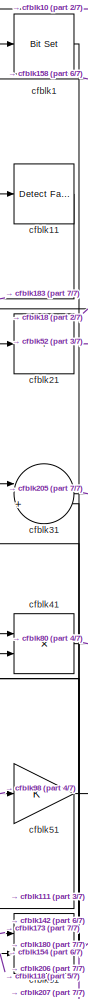
[diagram: root canvas - part 1/7, top left region]
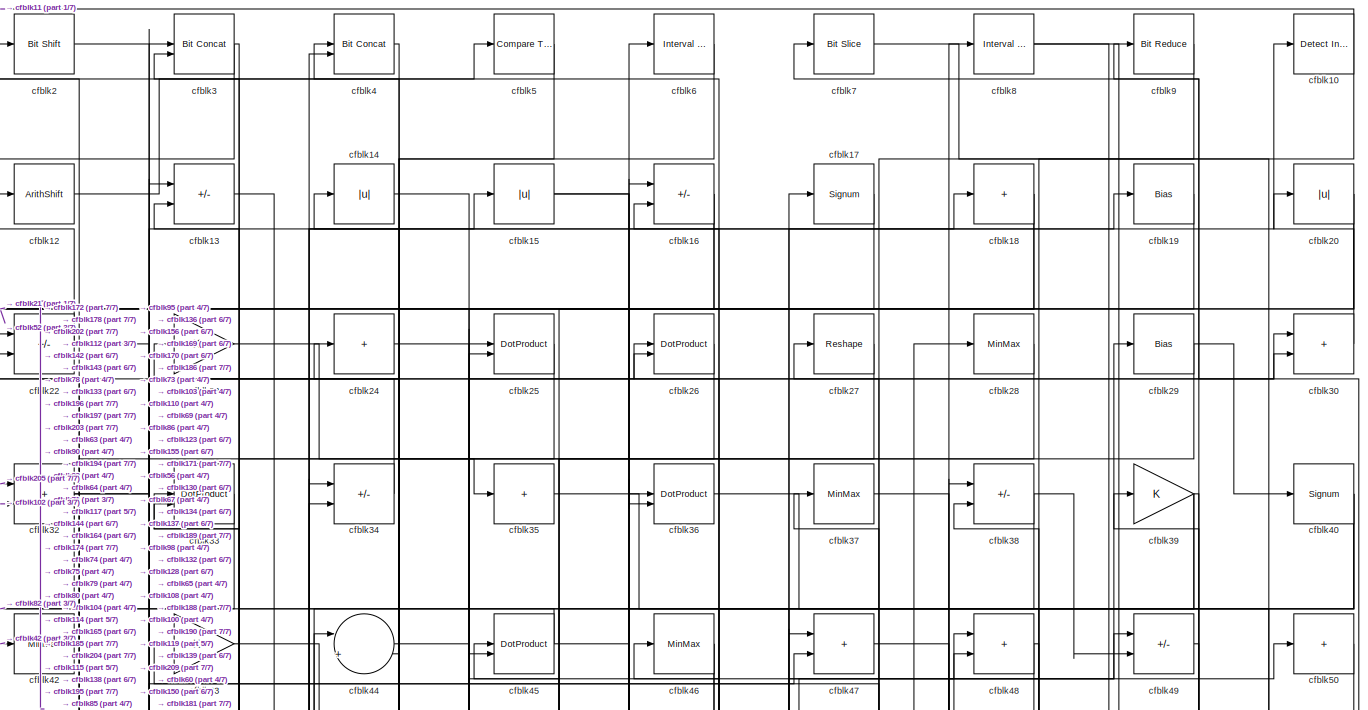
[diagram: root canvas - part 2/7, full width, top band]
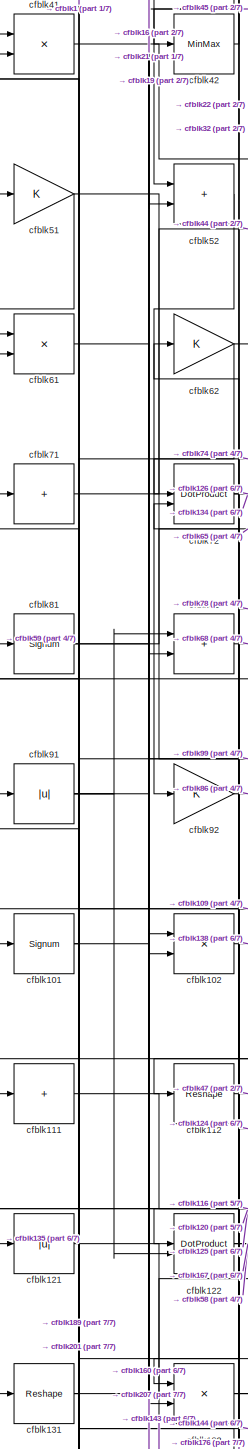
[diagram: root canvas - part 3/7, middle left region]
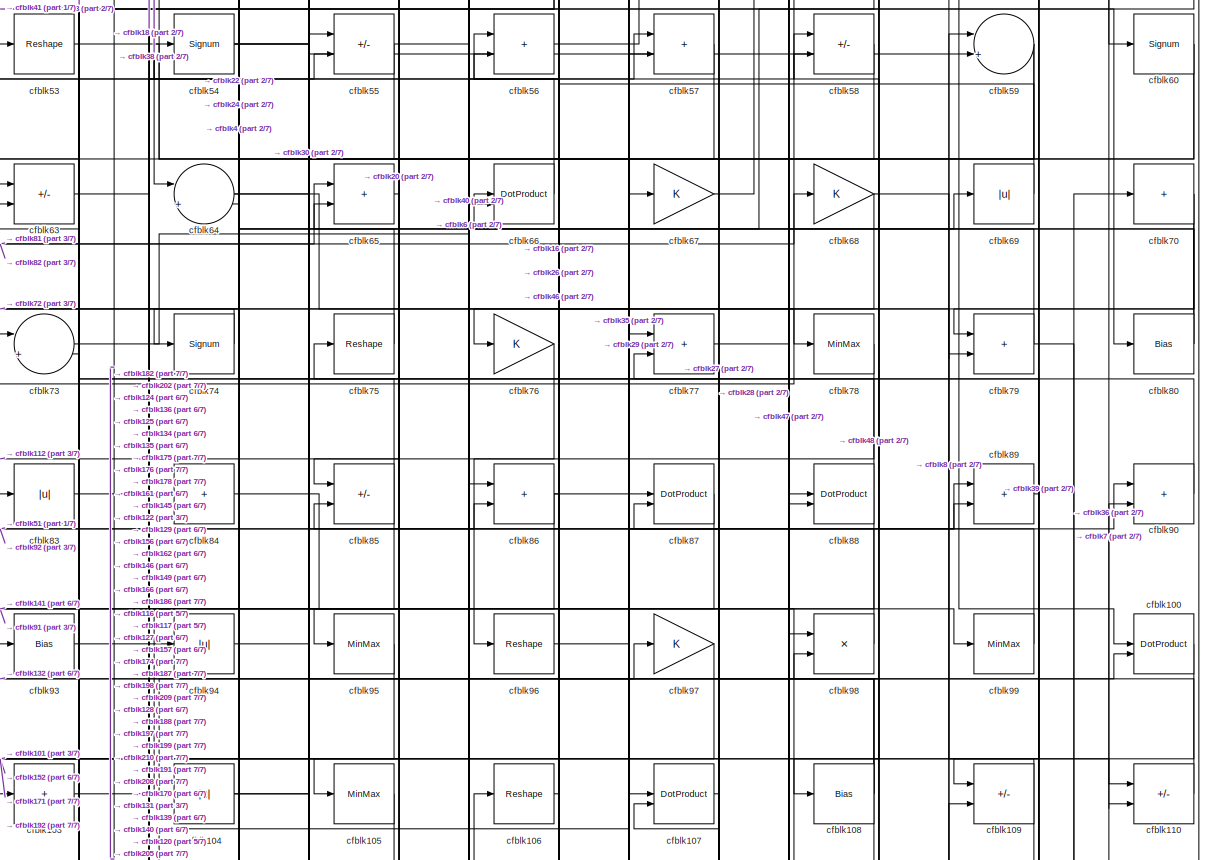
[diagram: root canvas - part 4/7, full width, middle band]
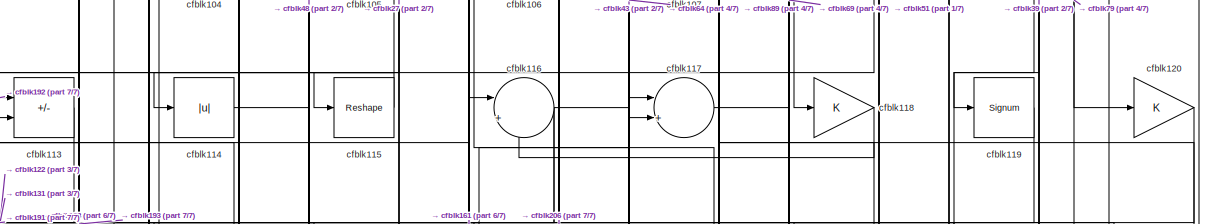
[diagram: root canvas - part 5/7, full width, middle band]
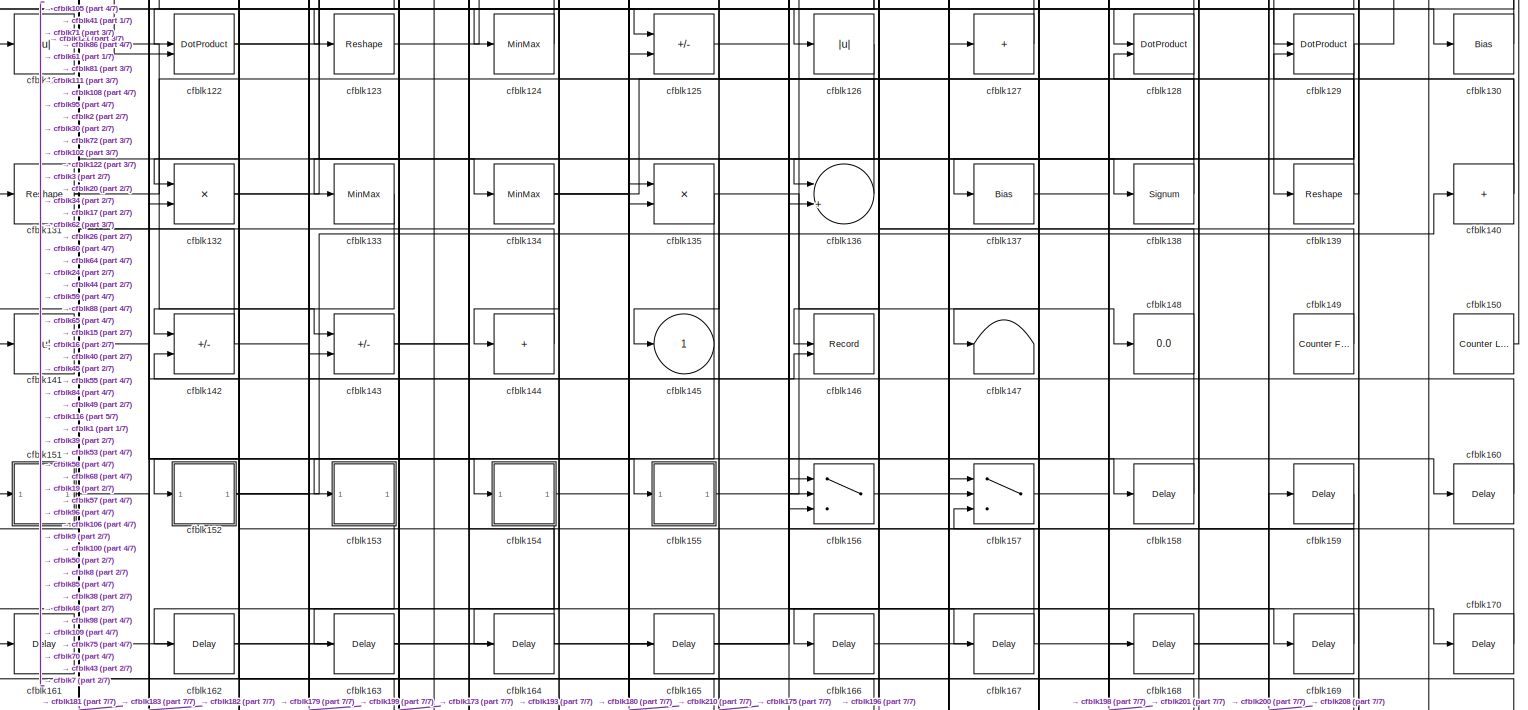
[diagram: root canvas - part 6/7, full width, bottom band]
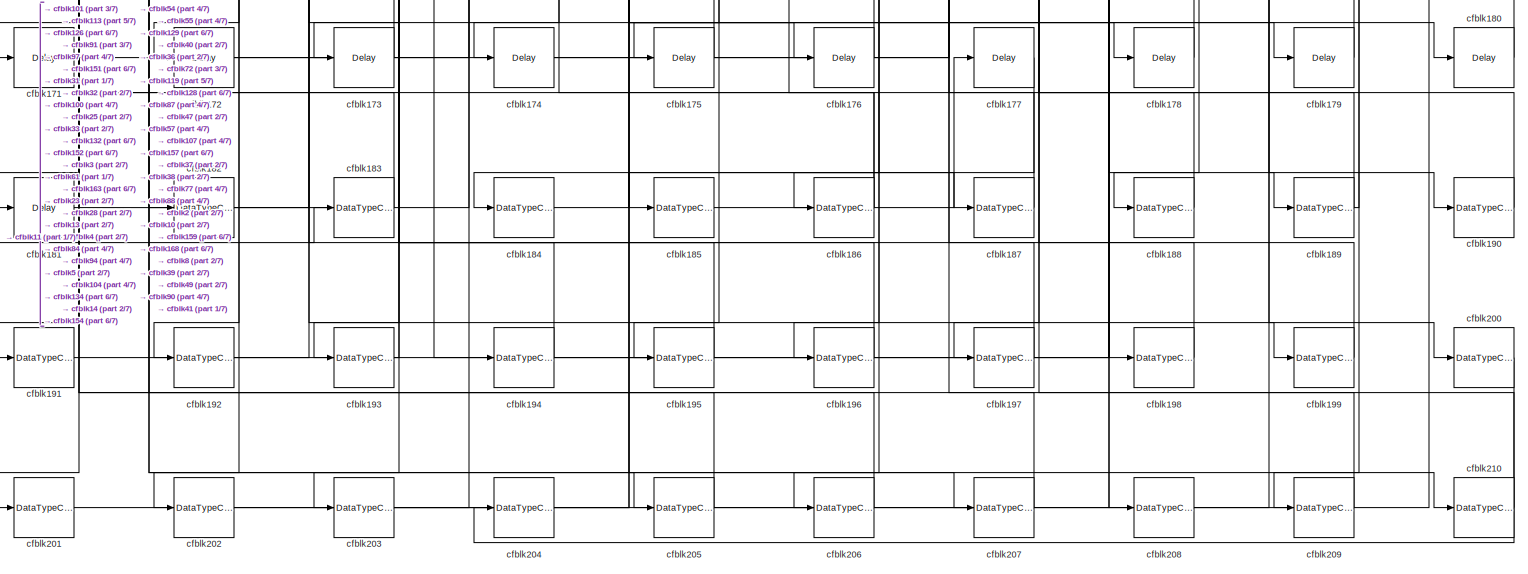
[diagram: root canvas - part 7/7, full width, bottom band]
MODEL slx_5a0d60362ead
KIND model
CONFIG AbsTol = auto
CONFIG EnableMultiTasking = off
CONFIG FixedStep = auto
CONFIG MaxStep = auto
CONFIG MinStep = auto
CONFIG RelTol = 1e-3
CONFIG SampleTimeConstraint = Unconstrained
CONFIG SolverName = VariableStepAuto
CONFIG StartTime = 0.0
CONFIG StopTime = 10.0
BLOCK [Reference] cfblk1  REF=simulink/Logic and Bit
Operations/Bit Set
  LibrarySourceBlock = hdlsllib/Logic and Bit\nOperations/Bit Set
  SourceBlock = simulink/Logic and Bit\nOperations/Bit Set
  SourceType = Bit Set
BLOCK [Reference] cfblk10  REF=simulink/Logic and Bit
Operations/Detect
Increase
  LibrarySourceBlock = hdlsllib/Logic and Bit\nOperations/Detect\nIncrease
  SourceBlock = simulink/Logic and Bit\nOperations/Detect\nIncrease
  SourceType = Detect Increase
BLOCK [DotProduct] cfblk100
  OutDataTypeStr = Inherit: Inherit via internal rule
BLOCK [Signum] cfblk101
BLOCK [Product] cfblk102
  Inputs = */
  RndMeth = Zero
  SaturateOnIntegerOverflow = on
BLOCK [Sum] cfblk103
  IconShape = rectangular
  Inputs = +
BLOCK [Abs] cfblk104
  SaturateOnIntegerOverflow = off
BLOCK [MinMax] cfblk105
BLOCK [Reshape] cfblk106
BLOCK [DotProduct] cfblk107
  OutDataTypeStr = Inherit: Inherit via internal rule
BLOCK [Bias] cfblk108
  Bias = 0.0
  SaturateOnIntegerOverflow = off
BLOCK [Sum] cfblk109
  IconShape = rectangular
  Inputs = +-
BLOCK [Reference] cfblk11  REF=hdlsllib/Logic and Bit
Operations/Detect Fall
Nonpositive
  SourceBlock = hdlsllib/Logic and Bit\nOperations/Detect Fall\nNonpositive
  SourceType = Detect Fall Nonpositive
BLOCK [Sum] cfblk110
  IconShape = rectangular
  Inputs = +-
BLOCK [Sum] cfblk111
  IconShape = rectangular
  Inputs = +
BLOCK [Reshape] cfblk112
BLOCK [Sum] cfblk113
  IconShape = rectangular
  Inputs = +-
BLOCK [Abs] cfblk114
  SaturateOnIntegerOverflow = off
BLOCK [Reshape] cfblk115
BLOCK [Sum] cfblk116
  Inputs = |++
BLOCK [Sum] cfblk117
  Inputs = |++
BLOCK [Gain] cfblk118
BLOCK [Signum] cfblk119
BLOCK [ArithShift] cfblk12
  BitShiftNumber = 8
  InputPortMap = u0
BLOCK [Gain] cfblk120
BLOCK [Abs] cfblk121
  SaturateOnIntegerOverflow = off
BLOCK [DotProduct] cfblk122
  OutDataTypeStr = Inherit: Inherit via internal rule
BLOCK [Reshape] cfblk123
BLOCK [MinMax] cfblk124
BLOCK [Sum] cfblk125
  IconShape = rectangular
  Inputs = +-
BLOCK [Abs] cfblk126
  SaturateOnIntegerOverflow = off
BLOCK [Sum] cfblk127
  IconShape = rectangular
  Inputs = +
BLOCK [DotProduct] cfblk128
  OutDataTypeStr = Inherit: Inherit via internal rule
BLOCK [DotProduct] cfblk129
  OutDataTypeStr = Inherit: Inherit via internal rule
BLOCK [Sum] cfblk13
  IconShape = rectangular
  Inputs = +-
BLOCK [Bias] cfblk130
  Bias = 0.0
  SaturateOnIntegerOverflow = off
BLOCK [Reshape] cfblk131
BLOCK [Product] cfblk132
  Inputs = */
  RndMeth = Zero
  SaturateOnIntegerOverflow = on
BLOCK [MinMax] cfblk133
BLOCK [MinMax] cfblk134
BLOCK [Product] cfblk135
  Inputs = */
  RndMeth = Zero
  SaturateOnIntegerOverflow = on
BLOCK [Sum] cfblk136
  Inputs = |++
BLOCK [Bias] cfblk137
  Bias = 0.0
  SaturateOnIntegerOverflow = off
BLOCK [Signum] cfblk138
BLOCK [Reshape] cfblk139
BLOCK [Abs] cfblk14
  SaturateOnIntegerOverflow = off
BLOCK [Sum] cfblk140
  IconShape = rectangular
  Inputs = +
BLOCK [Abs] cfblk141
  SaturateOnIntegerOverflow = off
BLOCK [Sum] cfblk142
  IconShape = rectangular
  Inputs = +-
BLOCK [Sum] cfblk143
  IconShape = rectangular
  Inputs = +-
BLOCK [Sum] cfblk144
  IconShape = rectangular
  Inputs = +
BLOCK [Outport] cfblk145
  VectorParamsAs1DForOutWhenUnconnected = off
BLOCK [Record] cfblk146
  CompatibilityTag = XY
  FileSettingsInternal = {"entries":[{"content":{"excelSettings":{"content":{},"type":"Streamout.ExcelSettings"}},"type":"Streamout.FileSettingStorage","uuid":""}],"packageUris":["http:\/\/schema.mathworks.com\/mf0\/streamout_blocks\/R2020a"],"version":"1.0"}
  Layout = [1 1]
  SignalsInternal = {"entries":[{"content":{"signals":[{"content":{"blockPath":[],"dimensions":[1],"domain":"","lineColor":"#a2142f","plots":[1],"port":1,"signalID":1371,"signalName":"XY Graph:1"},"type":"RecordBlkView.Signal","uuid":""},{"content":{"blockPath":[],"dimensions":[1],"domain":"","lineColor":"#139fff","plots":[1],"port":2,"signalID":1374,"signalName":"XY Graph:2"},"type":"RecordBlkView.Signal","uuid":""}...<+146ch>
  VisualizationBindings = {"xyplotplugin":{"info":[{"series":[{"bindingParametersList":[{"parameter":"X-Axis","signalID":1371,"signalName":"XY Graph:1"},{"parameter":"Y-Axis","signalID":1374,"signalName":"XY Graph:2"}],"seriesID":50908}],"subplotID":1}]}}
  st = -1
BLOCK [Terminator] cfblk147
BLOCK [Display] cfblk148
  Decimation = 1
BLOCK [Reference] cfblk149  REF=hdlsllib/Sources/Counter
Free-Running
  SourceBlock = hdlsllib/Sources/Counter\nFree-Running
  SourceType = Counter Free-Running
BLOCK [Abs] cfblk15
  SaturateOnIntegerOverflow = off
BLOCK [Reference] cfblk150  REF=hdlsllib/Sources/Counter
Limited
  SourceBlock = hdlsllib/Sources/Counter\nLimited
  SourceType = Counter Limited
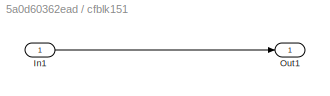
BLOCK [SubSystem] cfblk151
  LibrarySourceBlock = hdlsllib/Ports &\nSubsystems/Subsystem
BLOCK [Inport] cfblk151/In1
BLOCK [Outport] cfblk151/Out1
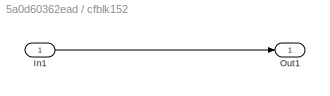
BLOCK [SubSystem] cfblk152
  LibrarySourceBlock = hdlsllib/Ports &\nSubsystems/Subsystem
BLOCK [Inport] cfblk152/In1
BLOCK [Outport] cfblk152/Out1
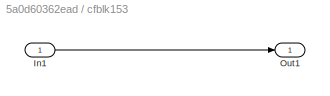
BLOCK [SubSystem] cfblk153
  LibrarySourceBlock = hdlsllib/Ports &\nSubsystems/Subsystem
BLOCK [Inport] cfblk153/In1
BLOCK [Outport] cfblk153/Out1
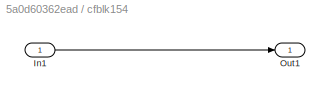
BLOCK [SubSystem] cfblk154
  LibrarySourceBlock = hdlsllib/Ports &\nSubsystems/Subsystem
BLOCK [Inport] cfblk154/In1
BLOCK [Outport] cfblk154/Out1
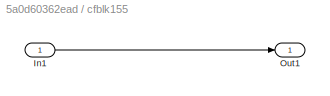
BLOCK [SubSystem] cfblk155
  LibrarySourceBlock = hdlsllib/Ports &\nSubsystems/Subsystem
BLOCK [Inport] cfblk155/In1
BLOCK [Outport] cfblk155/Out1
BLOCK [Switch] cfblk156
  InputSameDT = off
  SaturateOnIntegerOverflow = off
BLOCK [Switch] cfblk157
  InputSameDT = off
  SaturateOnIntegerOverflow = off
BLOCK [Delay] cfblk158
  InputPortMap = u0
  SampleTime = 1
BLOCK [Delay] cfblk159
  InputPortMap = u0
  SampleTime = 1
BLOCK [Sum] cfblk16
  IconShape = rectangular
  Inputs = +-
BLOCK [Delay] cfblk160
  InputPortMap = u0
  SampleTime = 1
BLOCK [Delay] cfblk161
  InputPortMap = u0
  SampleTime = 1
BLOCK [Delay] cfblk162
  InputPortMap = u0
  SampleTime = 1
BLOCK [Delay] cfblk163
  InputPortMap = u0
  SampleTime = 1
BLOCK [Delay] cfblk164
  InputPortMap = u0
  SampleTime = 1
BLOCK [Delay] cfblk165
  InputPortMap = u0
  SampleTime = 1
BLOCK [Delay] cfblk166
  InputPortMap = u0
  SampleTime = 1
BLOCK [Delay] cfblk167
  InputPortMap = u0
  SampleTime = 1
BLOCK [Delay] cfblk168
  InputPortMap = u0
  SampleTime = 1
BLOCK [Delay] cfblk169
  InputPortMap = u0
  SampleTime = 1
BLOCK [Signum] cfblk17
BLOCK [Delay] cfblk170
  InputPortMap = u0
  SampleTime = 1
BLOCK [Delay] cfblk171
  InputPortMap = u0
  SampleTime = 1
BLOCK [Delay] cfblk172
  InputPortMap = u0
  SampleTime = 1
BLOCK [Delay] cfblk173
  InputPortMap = u0
  SampleTime = 1
BLOCK [Delay] cfblk174
  InputPortMap = u0
  SampleTime = 1
BLOCK [Delay] cfblk175
  InputPortMap = u0
  SampleTime = 1
BLOCK [Delay] cfblk176
  InputPortMap = u0
  SampleTime = 1
BLOCK [Delay] cfblk177
  InputPortMap = u0
  SampleTime = 1
BLOCK [Delay] cfblk178
  InputPortMap = u0
  SampleTime = 1
BLOCK [Delay] cfblk179
  InputPortMap = u0
  SampleTime = 1
BLOCK [Sum] cfblk18
  IconShape = rectangular
  Inputs = +
BLOCK [Delay] cfblk180
  InputPortMap = u0
  SampleTime = 1
BLOCK [Delay] cfblk181
  InputPortMap = u0
  SampleTime = 1
BLOCK [DataTypeConversion] cfblk182
  OutDataTypeStr = uint8
  RndMeth = Floor
  SaturateOnIntegerOverflow = off
BLOCK [DataTypeConversion] cfblk183
  OutDataTypeStr = uint8
  RndMeth = Floor
  SaturateOnIntegerOverflow = off
BLOCK [DataTypeConversion] cfblk184
  OutDataTypeStr = uint8
  RndMeth = Floor
  SaturateOnIntegerOverflow = off
BLOCK [DataTypeConversion] cfblk185
  OutDataTypeStr = uint8
  RndMeth = Floor
  SaturateOnIntegerOverflow = off
BLOCK [DataTypeConversion] cfblk186
  RndMeth = Floor
  SaturateOnIntegerOverflow = off
BLOCK [DataTypeConversion] cfblk187
  OutDataTypeStr = uint8
  RndMeth = Floor
  SaturateOnIntegerOverflow = off
BLOCK [DataTypeConversion] cfblk188
  OutDataTypeStr = uint8
  RndMeth = Floor
  SaturateOnIntegerOverflow = off
BLOCK [DataTypeConversion] cfblk189
  RndMeth = Floor
  SaturateOnIntegerOverflow = off
BLOCK [Bias] cfblk19
  Bias = 0.0
  SaturateOnIntegerOverflow = off
BLOCK [DataTypeConversion] cfblk190
  OutDataTypeStr = uint8
  RndMeth = Floor
  SaturateOnIntegerOverflow = off
BLOCK [DataTypeConversion] cfblk191
  OutDataTypeStr = uint8
  RndMeth = Floor
  SaturateOnIntegerOverflow = off
BLOCK [DataTypeConversion] cfblk192
  OutDataTypeStr = uint8
  RndMeth = Floor
  SaturateOnIntegerOverflow = off
BLOCK [DataTypeConversion] cfblk193
  OutDataTypeStr = uint8
  RndMeth = Floor
  SaturateOnIntegerOverflow = off
BLOCK [DataTypeConversion] cfblk194
  RndMeth = Floor
  SaturateOnIntegerOverflow = off
BLOCK [DataTypeConversion] cfblk195
  OutDataTypeStr = uint8
  RndMeth = Floor
  SaturateOnIntegerOverflow = off
BLOCK [DataTypeConversion] cfblk196
  OutDataTypeStr = uint8
  RndMeth = Floor
  SaturateOnIntegerOverflow = off
BLOCK [DataTypeConversion] cfblk197
  OutDataTypeStr = uint8
  RndMeth = Floor
  SaturateOnIntegerOverflow = off
BLOCK [DataTypeConversion] cfblk198
  OutDataTypeStr = uint8
  RndMeth = Floor
  SaturateOnIntegerOverflow = off
BLOCK [DataTypeConversion] cfblk199
  OutDataTypeStr = uint8
  RndMeth = Floor
  SaturateOnIntegerOverflow = off
BLOCK [Reference] cfblk2  REF=hdlsllib/Logic and Bit
Operations/Bit Shift
  SourceBlock = hdlsllib/Logic and Bit\nOperations/Bit Shift
  SourceType = Bit Shift
BLOCK [Abs] cfblk20
  SaturateOnIntegerOverflow = off
BLOCK [DataTypeConversion] cfblk200
  OutDataTypeStr = uint8
  RndMeth = Floor
  SaturateOnIntegerOverflow = off
BLOCK [DataTypeConversion] cfblk201
  OutDataTypeStr = uint8
  RndMeth = Floor
  SaturateOnIntegerOverflow = off
BLOCK [DataTypeConversion] cfblk202
  OutDataTypeStr = uint8
  RndMeth = Floor
  SaturateOnIntegerOverflow = off
BLOCK [DataTypeConversion] cfblk203
  OutDataTypeStr = uint8
  RndMeth = Floor
  SaturateOnIntegerOverflow = off
BLOCK [DataTypeConversion] cfblk204
  OutDataTypeStr = uint8
  RndMeth = Floor
  SaturateOnIntegerOverflow = off
BLOCK [DataTypeConversion] cfblk205
  RndMeth = Floor
  SaturateOnIntegerOverflow = off
BLOCK [DataTypeConversion] cfblk206
  OutDataTypeStr = uint8
  RndMeth = Floor
  SaturateOnIntegerOverflow = off
BLOCK [DataTypeConversion] cfblk207
  OutDataTypeStr = uint8
  RndMeth = Floor
  SaturateOnIntegerOverflow = off
BLOCK [DataTypeConversion] cfblk208
  OutDataTypeStr = uint8
  RndMeth = Floor
  SaturateOnIntegerOverflow = off
BLOCK [DataTypeConversion] cfblk209
  OutDataTypeStr = uint8
  RndMeth = Floor
  SaturateOnIntegerOverflow = off
BLOCK [Sum] cfblk21
  IconShape = rectangular
  Inputs = +
BLOCK [DataTypeConversion] cfblk210
  OutDataTypeStr = uint8
  RndMeth = Floor
  SaturateOnIntegerOverflow = off
BLOCK [Sum] cfblk22
  IconShape = rectangular
  Inputs = +-
BLOCK [Gain] cfblk23
BLOCK [Sum] cfblk24
  IconShape = rectangular
  Inputs = +
BLOCK [DotProduct] cfblk25
  OutDataTypeStr = Inherit: Inherit via internal rule
BLOCK [DotProduct] cfblk26
  OutDataTypeStr = Inherit: Inherit via internal rule
BLOCK [Reshape] cfblk27
BLOCK [MinMax] cfblk28
BLOCK [Bias] cfblk29
  Bias = 0.0
  SaturateOnIntegerOverflow = off
BLOCK [Reference] cfblk3  REF=hdlsllib/Logic and Bit
Operations/Bit Concat
  SourceBlock = hdlsllib/Logic and Bit\nOperations/Bit Concat
  SourceType = Bit Concat
BLOCK [Sum] cfblk30
  IconShape = rectangular
BLOCK [Sum] cfblk31
  Inputs = |++
BLOCK [Sum] cfblk32
  IconShape = rectangular
BLOCK [DotProduct] cfblk33
  OutDataTypeStr = Inherit: Inherit via internal rule
BLOCK [Sum] cfblk34
  IconShape = rectangular
  Inputs = +-
BLOCK [Sum] cfblk35
  IconShape = rectangular
  Inputs = +
BLOCK [DotProduct] cfblk36
  OutDataTypeStr = Inherit: Inherit via internal rule
BLOCK [MinMax] cfblk37
BLOCK [Sum] cfblk38
  IconShape = rectangular
  Inputs = +-
BLOCK [Gain] cfblk39
BLOCK [Reference] cfblk4  REF=hdlsllib/Logic and Bit
Operations/Bit Concat
  SourceBlock = hdlsllib/Logic and Bit\nOperations/Bit Concat
  SourceType = Bit Concat
BLOCK [Signum] cfblk40
BLOCK [Product] cfblk41
  Inputs = */
  RndMeth = Zero
  SaturateOnIntegerOverflow = on
BLOCK [MinMax] cfblk42
BLOCK [Gain] cfblk43
BLOCK [Sum] cfblk44
  Inputs = |++
BLOCK [DotProduct] cfblk45
  OutDataTypeStr = Inherit: Inherit via internal rule
BLOCK [MinMax] cfblk46
BLOCK [Sum] cfblk47
  IconShape = rectangular
BLOCK [Sum] cfblk48
  IconShape = rectangular
BLOCK [Sum] cfblk49
  IconShape = rectangular
  Inputs = +-
BLOCK [Reference] cfblk5  REF=hdlsllib/Logic and Bit
Operations/Compare
To Zero
  SourceBlock = hdlsllib/Logic and Bit\nOperations/Compare\nTo Zero
  SourceType = Compare To Zero
BLOCK [Sum] cfblk50
  IconShape = rectangular
  Inputs = +
BLOCK [Gain] cfblk51
BLOCK [Sum] cfblk52
  IconShape = rectangular
BLOCK [Reshape] cfblk53
BLOCK [Signum] cfblk54
BLOCK [Sum] cfblk55
  IconShape = rectangular
  Inputs = +-
BLOCK [Sum] cfblk56
  IconShape = rectangular
BLOCK [Sum] cfblk57
  IconShape = rectangular
BLOCK [Sum] cfblk58
  IconShape = rectangular
  Inputs = +-
BLOCK [Sum] cfblk59
  Inputs = |++
BLOCK [Reference] cfblk6  REF=hdlsllib/Logic and Bit
Operations/Interval Test
  SourceBlock = hdlsllib/Logic and Bit\nOperations/Interval Test
  SourceType = Interval Test
BLOCK [Signum] cfblk60
BLOCK [Product] cfblk61
  Inputs = */
  RndMeth = Zero
  SaturateOnIntegerOverflow = on
BLOCK [Gain] cfblk62
BLOCK [Sum] cfblk63
  IconShape = rectangular
  Inputs = +-
BLOCK [Sum] cfblk64
  Inputs = |++
BLOCK [Sum] cfblk65
  IconShape = rectangular
BLOCK [DotProduct] cfblk66
  OutDataTypeStr = Inherit: Inherit via internal rule
BLOCK [Gain] cfblk67
BLOCK [Gain] cfblk68
BLOCK [Abs] cfblk69
  SaturateOnIntegerOverflow = off
BLOCK [Reference] cfblk7  REF=hdlsllib/Logic and Bit
Operations/Bit Slice
  SourceBlock = hdlsllib/Logic and Bit\nOperations/Bit Slice
  SourceType = Bit Slice
BLOCK [Sum] cfblk70
  IconShape = rectangular
  Inputs = +
BLOCK [Sum] cfblk71
  IconShape = rectangular
  Inputs = +
BLOCK [DotProduct] cfblk72
  OutDataTypeStr = Inherit: Inherit via internal rule
BLOCK [Sum] cfblk73
  Inputs = |++
BLOCK [Signum] cfblk74
BLOCK [Reshape] cfblk75
BLOCK [Gain] cfblk76
BLOCK [Sum] cfblk77
  IconShape = rectangular
BLOCK [MinMax] cfblk78
BLOCK [Sum] cfblk79
  IconShape = rectangular
BLOCK [Reference] cfblk8  REF=hdlsllib/Logic and Bit
Operations/Interval Test
  SourceBlock = hdlsllib/Logic and Bit\nOperations/Interval Test
  SourceType = Interval Test
BLOCK [Bias] cfblk80
  Bias = 0.0
  SaturateOnIntegerOverflow = off
BLOCK [Signum] cfblk81
BLOCK [Sum] cfblk82
  IconShape = rectangular
BLOCK [Abs] cfblk83
  SaturateOnIntegerOverflow = off
BLOCK [Sum] cfblk84
  IconShape = rectangular
  Inputs = +
BLOCK [Sum] cfblk85
  IconShape = rectangular
  Inputs = +-
BLOCK [Sum] cfblk86
  IconShape = rectangular
BLOCK [DotProduct] cfblk87
  OutDataTypeStr = Inherit: Inherit via internal rule
BLOCK [DotProduct] cfblk88
  OutDataTypeStr = Inherit: Inherit via internal rule
BLOCK [Sum] cfblk89
  IconShape = rectangular
BLOCK [Reference] cfblk9  REF=hdlsllib/Logic and Bit
Operations/Bit Reduce
  SourceBlock = hdlsllib/Logic and Bit\nOperations/Bit Reduce
  SourceType = Bit Reduce
BLOCK [Sum] cfblk90
  IconShape = rectangular
BLOCK [Abs] cfblk91
  SaturateOnIntegerOverflow = off
BLOCK [Gain] cfblk92
BLOCK [Bias] cfblk93
  Bias = 0.0
  SaturateOnIntegerOverflow = off
BLOCK [Abs] cfblk94
  SaturateOnIntegerOverflow = off
BLOCK [MinMax] cfblk95
BLOCK [Reshape] cfblk96
BLOCK [Gain] cfblk97
BLOCK [Product] cfblk98
  Inputs = */
  RndMeth = Zero
  SaturateOnIntegerOverflow = on
BLOCK [MinMax] cfblk99
LINE cfblk100:1 -> cfblk192:1
NET cfblk101:1 -> cfblk201:1, cfblk207:1
LINE cfblk102:1 -> cfblk138:1
LINE cfblk103:1 -> cfblk97:1
NET cfblk104:1 -> cfblk176:1, cfblk30:2
LINE cfblk105:1 -> cfblk161:1
LINE cfblk106:1 -> cfblk56:2
LINE cfblk107:1 -> cfblk197:1
NET cfblk108:1 -> cfblk132:1, cfblk27:1, cfblk83:1, cfblk93:1
NET cfblk109:1 -> cfblk101:1, cfblk139:1
NET cfblk10:1 -> cfblk11:1, cfblk188:1
LINE cfblk110:1 -> cfblk46:1
LINE cfblk111:1 -> cfblk125:1
LINE cfblk112:1 -> cfblk47:2
LINE cfblk113:1 -> cfblk191:1
LINE cfblk114:1 -> cfblk48:2
LINE cfblk115:1 -> cfblk114:1
NET cfblk116:1 -> cfblk131:1, cfblk163:1, cfblk89:1
LINE cfblk117:1 -> cfblk69:1
LINE cfblk118:1 -> cfblk116:2
LINE cfblk119:1 -> cfblk206:1
LINE cfblk11:1 -> cfblk183:1
LINE cfblk120:1 -> cfblk122:1
LINE cfblk121:1 -> cfblk143:1
NET cfblk122:1 -> cfblk167:1, cfblk58:2
LINE cfblk123:1 -> cfblk17:1
LINE cfblk124:1 -> cfblk62:1
LINE cfblk125:1 -> cfblk158:1
LINE cfblk126:1 -> cfblk181:1
LINE cfblk127:1 -> cfblk106:1
NET cfblk128:1 -> cfblk196:1, cfblk85:2
NET cfblk129:1 -> cfblk147:1, cfblk175:1, cfblk70:1
LINE cfblk12:1 -> cfblk5:1
LINE cfblk130:1 -> cfblk43:1
NET cfblk131:1 -> cfblk59:1, cfblk81:1
NET cfblk132:1 -> cfblk199:1, cfblk48:1
LINE cfblk133:1 -> cfblk142:1
NET cfblk134:1 -> cfblk100:2, cfblk180:1, cfblk8:1
NET cfblk135:1 -> cfblk148:1, cfblk153:1
LINE cfblk136:1 -> cfblk64:2
LINE cfblk137:1 -> cfblk50:1
LINE cfblk138:1 -> cfblk45:1
NET cfblk139:1 -> cfblk38:2, cfblk9:1
LINE cfblk13:1 -> cfblk194:1
NET cfblk140:1 -> cfblk129:2, cfblk75:1
LINE cfblk141:1 -> cfblk155:1
NET cfblk142:1 -> cfblk30:1, cfblk41:1
NET cfblk143:1 -> cfblk20:1, cfblk34:2
LINE cfblk144:1 -> cfblk71:1
LINE cfblk149:1 -> cfblk53:1
LINE cfblk14:1 -> cfblk185:1
LINE cfblk150:1 -> cfblk7:1
LINE cfblk151/In1:1 -> cfblk151/Out1:1
LINE cfblk151:1 -> cfblk182:1
LINE cfblk152/In1:1 -> cfblk152/Out1:1
NET cfblk152:1 -> cfblk140:1, cfblk146:2, cfblk179:1
LINE cfblk153/In1:1 -> cfblk153/Out1:1
LINE cfblk153:1 -> cfblk162:1
LINE cfblk154/In1:1 -> cfblk154/Out1:1
NET cfblk154:1 -> cfblk173:1, cfblk210:1
LINE cfblk155/In1:1 -> cfblk155/Out1:1
LINE cfblk155:1 -> cfblk49:1
LINE cfblk156:1 -> cfblk19:1
LINE cfblk157:1 -> cfblk198:1
LINE cfblk158:1 -> cfblk1:1
LINE cfblk159:1 -> cfblk157:3
NET cfblk15:1 -> cfblk169:1, cfblk170:1
LINE cfblk160:1 -> cfblk102:1
LINE cfblk161:1 -> cfblk116:1
LINE cfblk162:1 -> cfblk86:1
LINE cfblk163:1 -> cfblk193:1
LINE cfblk164:1 -> cfblk142:2
LINE cfblk165:1 -> cfblk16:1
LINE cfblk166:1 -> cfblk109:2
LINE cfblk167:1 -> cfblk156:2
LINE cfblk168:1 -> cfblk200:1
LINE cfblk169:1 -> cfblk34:1
NET cfblk16:1 -> cfblk102:2, cfblk32:2
LINE cfblk170:1 -> cfblk98:2
LINE cfblk171:1 -> cfblk47:1
LINE cfblk172:1 -> cfblk4:2
LINE cfblk173:1 -> cfblk61:1
LINE cfblk174:1 -> cfblk57:2
LINE cfblk175:1 -> cfblk55:1
LINE cfblk176:1 -> cfblk72:2
LINE cfblk177:1 -> cfblk184:1
LINE cfblk178:1 -> cfblk2:1
LINE cfblk179:1 -> cfblk128:2
LINE cfblk17:1 -> cfblk164:1
LINE cfblk180:1 -> cfblk41:2
LINE cfblk181:1 -> cfblk3:1
LINE cfblk182:1 -> cfblk94:1
LINE cfblk183:1 -> cfblk151:1
LINE cfblk184:1 -> cfblk187:1
LINE cfblk185:1 -> cfblk177:1
NET cfblk186:1 -> cfblk14:1, cfblk36:1
LINE cfblk187:1 -> cfblk87:1
LINE cfblk188:1 -> cfblk87:2
NET cfblk189:1 -> cfblk39:1, cfblk91:1
NET cfblk18:1 -> cfblk21:1, cfblk36:2
LINE cfblk190:1 -> cfblk37:1
LINE cfblk191:1 -> cfblk88:1
LINE cfblk192:1 -> cfblk113:1
LINE cfblk193:1 -> cfblk113:2
NET cfblk194:1 -> cfblk33:2, cfblk38:1
LINE cfblk195:1 -> cfblk13:1
LINE cfblk196:1 -> cfblk13:2
LINE cfblk197:1 -> cfblk23:1
LINE cfblk198:1 -> cfblk107:1
LINE cfblk199:1 -> cfblk107:2
LINE cfblk19:1 -> cfblk52:1
LINE cfblk1:1 -> cfblk111:1
LINE cfblk200:1 -> cfblk204:1
LINE cfblk201:1 -> cfblk168:1
LINE cfblk202:1 -> cfblk84:1
LINE cfblk203:1 -> cfblk25:1
LINE cfblk204:1 -> cfblk25:2
NET cfblk205:1 -> cfblk32:1, cfblk90:2
LINE cfblk206:1 -> cfblk31:1
LINE cfblk207:1 -> cfblk31:2
LINE cfblk208:1 -> cfblk159:1
LINE cfblk209:1 -> cfblk77:1
NET cfblk20:1 -> cfblk45:2, cfblk85:1
LINE cfblk210:1 -> cfblk77:2
LINE cfblk21:1 -> cfblk52:2
NET cfblk22:1 -> cfblk12:1, cfblk78:1
LINE cfblk23:1 -> cfblk35:1
LINE cfblk24:1 -> cfblk130:1
LINE cfblk25:1 -> cfblk202:1
LINE cfblk26:1 -> cfblk144:1
LINE cfblk27:1 -> cfblk115:1
LINE cfblk28:1 -> cfblk203:1
NET cfblk29:1 -> cfblk40:1, cfblk95:1
LINE cfblk2:1 -> cfblk143:2
LINE cfblk30:1 -> cfblk10:1
LINE cfblk31:1 -> cfblk205:1
NET cfblk32:1 -> cfblk15:1, cfblk26:2, cfblk82:2
LINE cfblk33:1 -> cfblk172:1
LINE cfblk34:1 -> cfblk3:2
LINE cfblk35:1 -> cfblk67:1
LINE cfblk36:1 -> cfblk110:1
LINE cfblk37:1 -> cfblk189:1
NET cfblk38:1 -> cfblk49:2, cfblk64:1
NET cfblk39:1 -> cfblk108:1, cfblk119:1, cfblk136:1
NET cfblk3:1 -> cfblk132:2, cfblk133:1
NET cfblk40:1 -> cfblk156:3, cfblk195:1, cfblk63:1
LINE cfblk41:1 -> cfblk80:1
LINE cfblk42:1 -> cfblk22:2
LINE cfblk43:1 -> cfblk117:1
LINE cfblk44:1 -> cfblk165:1
NET cfblk45:1 -> cfblk136:2, cfblk42:1
NET cfblk46:1 -> cfblk103:1, cfblk73:2
LINE cfblk47:1 -> cfblk98:1
NET cfblk48:1 -> cfblk128:1, cfblk65:1
LINE cfblk49:1 -> cfblk209:1
LINE cfblk4:1 -> cfblk74:1
LINE cfblk50:1 -> cfblk123:1
NET cfblk51:1 -> cfblk118:1, cfblk61:2
LINE cfblk52:1 -> cfblk92:1
LINE cfblk53:1 -> cfblk127:1
NET cfblk54:1 -> cfblk178:1, cfblk59:2, cfblk66:2
NET cfblk55:1 -> cfblk129:1, cfblk73:1
LINE cfblk56:1 -> cfblk29:1
LINE cfblk57:1 -> cfblk157:2
LINE cfblk58:1 -> cfblk166:1
NET cfblk59:1 -> cfblk105:1, cfblk135:2
LINE cfblk5:1 -> cfblk174:1
NET cfblk60:1 -> cfblk124:1, cfblk88:2
LINE cfblk61:1 -> cfblk154:1
NET cfblk62:1 -> cfblk121:1, cfblk135:1
LINE cfblk63:1 -> cfblk57:1
NET cfblk64:1 -> cfblk117:2, cfblk79:2
LINE cfblk65:1 -> cfblk145:1
LINE cfblk66:1 -> cfblk56:1
LINE cfblk67:1 -> cfblk28:1
NET cfblk68:1 -> cfblk110:2, cfblk146:1
LINE cfblk69:1 -> cfblk26:1
LINE cfblk6:1 -> cfblk44:2
NET cfblk70:1 -> cfblk76:1, cfblk79:1
LINE cfblk71:1 -> cfblk44:1
NET cfblk72:1 -> cfblk126:1, cfblk134:1
LINE cfblk73:1 -> cfblk6:1
LINE cfblk74:1 -> cfblk72:1
LINE cfblk75:1 -> cfblk22:1
LINE cfblk76:1 -> cfblk96:1
LINE cfblk77:1 -> cfblk208:1
LINE cfblk78:1 -> cfblk112:1
NET cfblk79:1 -> cfblk120:1, cfblk24:1
LINE cfblk7:1 -> cfblk60:1
NET cfblk80:1 -> cfblk4:1, cfblk66:1
NET cfblk81:1 -> cfblk160:1, cfblk65:2
LINE cfblk82:1 -> cfblk68:1
LINE cfblk83:1 -> cfblk55:2
LINE cfblk84:1 -> cfblk156:1
NET cfblk85:1 -> cfblk104:1, cfblk54:1
NET cfblk86:1 -> cfblk141:1, cfblk16:2, cfblk89:2
LINE cfblk87:1 -> cfblk186:1
NET cfblk88:1 -> cfblk125:2, cfblk63:2
LINE cfblk89:1 -> cfblk109:1
NET cfblk8:1 -> cfblk100:1, cfblk190:1
LINE cfblk90:1 -> cfblk33:1
NET cfblk91:1 -> cfblk122:2, cfblk82:1, cfblk99:1
LINE cfblk92:1 -> cfblk86:2
LINE cfblk93:1 -> cfblk18:1
LINE cfblk94:1 -> cfblk90:1
LINE cfblk95:1 -> cfblk152:1
LINE cfblk96:1 -> cfblk157:1
LINE cfblk97:1 -> cfblk171:1
LINE cfblk98:1 -> cfblk51:1
LINE cfblk99:1 -> cfblk58:1
LINE cfblk9:1 -> cfblk137:1
note: NET lines group one-source signal fan-out (src -> all destinations, sorted); 1:1 wires keep LINE
